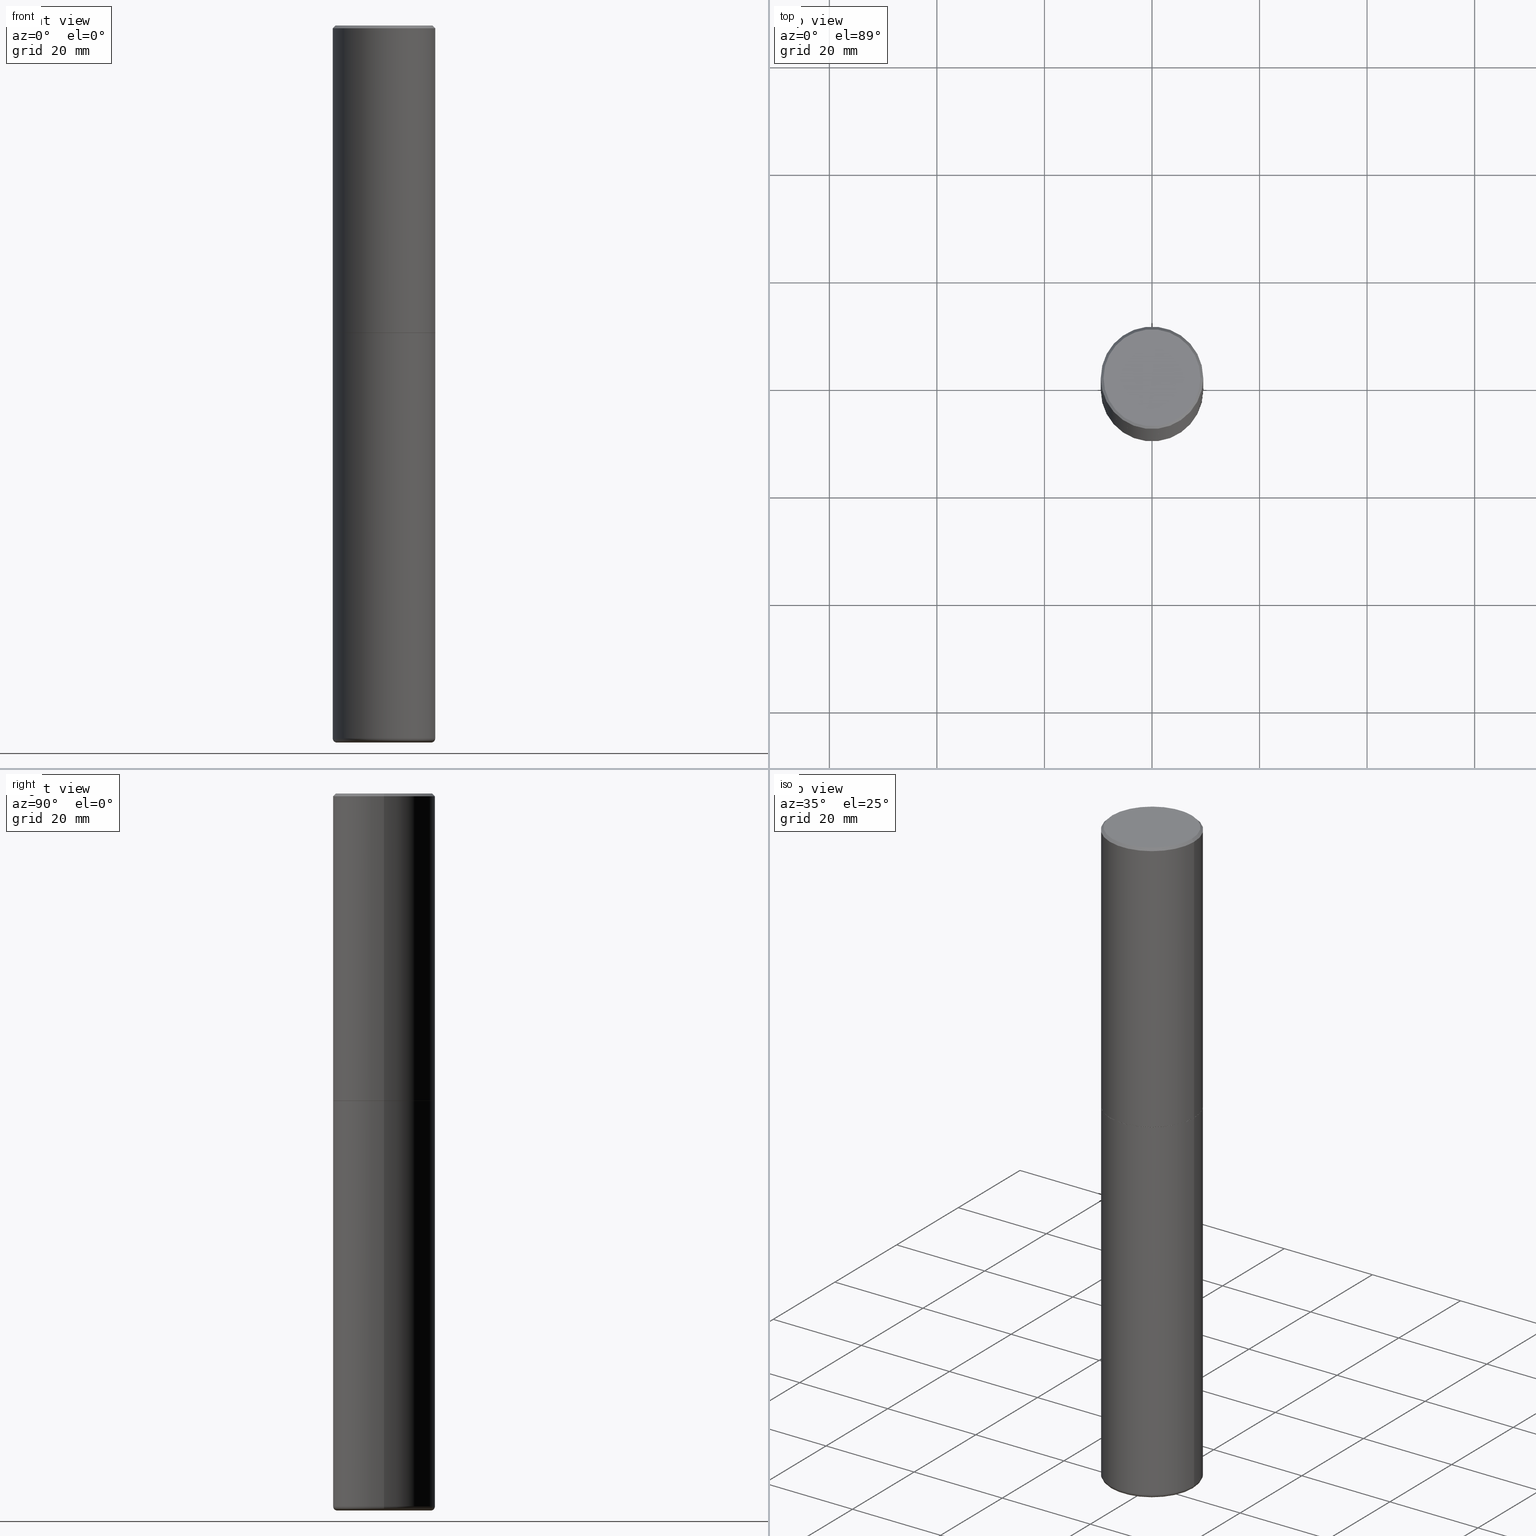
[diagram: canonical four-view strip — front | top / right | iso, engineering-drawing reading convention]
A machine part, canonical four-view strip (front | top / right | iso — engineering-drawing reading convention). The complete STEP part file that produces these views, byte-faithful:
ISO-10303-21;
HEADER;
FILE_DESCRIPTION (( 'STEP AP203' ),
    '1' );
FILE_NAME ('77448.STEP',
    '2024-05-02T19:42:38',
    ( '' ),
    ( '' ),
    'SwSTEP 2.0',
    'SolidWorks 2023',
    '' );
FILE_SCHEMA (( 'CONFIG_CONTROL_DESIGN' ));
ENDSEC;

DATA;
#1 = EDGE_LOOP ( 'NONE', ( #189, #202, #184, #107 ) ) ;
#2 = COORDINATED_UNIVERSAL_TIME_OFFSET ( 5, 0, .BEHIND. ) ;
#3 = TOROIDAL_SURFACE ( 'NONE', #246, 0.3450000000000000289, 0.03000000000000025910 ) ;
#4 = ORIENTED_EDGE ( 'NONE', *, *, #241, .F. ) ;
#5 = COORDINATED_UNIVERSAL_TIME_OFFSET ( 5, 0, .BEHIND. ) ;
#6 = CARTESIAN_POINT ( 'NONE',  ( 0.3750000000000001665, -2.618611004132351200E-15, 1.828566290923476763E-29 ) ) ;
#7 = EDGE_LOOP ( 'NONE', ( #255, #357, #27, #65 ) ) ;
#8 = MANIFOLD_SOLID_BREP ( 'Body-Move/Copy2[1]', #154 ) ;
#9 = CARTESIAN_POINT ( 'NONE',  ( 0.000000000000000000, 0.000000000000000000, 0.000000000000000000 ) ) ;
#10 = VECTOR ( 'NONE', #359, 39.37007874015748143 ) ;
#11 = LOCAL_TIME ( 15, 42, 38.00000000000000000, #352 ) ;
#12 = COORDINATED_UNIVERSAL_TIME_OFFSET ( 5, 0, .BEHIND. ) ;
#13 = CARTESIAN_POINT ( 'NONE',  ( 0.3750000000000000555, -2.642516375941188029E-15, -0.02000000000000008715 ) ) ;
#14 = CARTESIAN_POINT ( 'NONE',  ( 4.890937612370294178E-31, -6.982962677686321191E-17, -0.02000000000000008715 ) ) ;
#15 = FACE_OUTER_BOUND ( 'NONE', #131, .T. ) ;
#16 = AXIS2_PLACEMENT_3D ( 'NONE', #256, #310, #380 ) ;
#17 = LOCAL_TIME ( 15, 42, 38.00000000000000000, #5 ) ;
#18 = MANIFOLD_SOLID_BREP ( 'Body-Move/Copy2[2]', #101 ) ;
#19 = DIRECTION ( 'NONE',  ( -2.445468806185136597E-29, 3.491481338843145583E-15, 1.000000000000000000 ) ) ;
#20 = ADVANCED_FACE ( 'NONE', ( #355 ), #64, .T. ) ;
#21 = FACE_OUTER_BOUND ( 'NONE', #1, .T. ) ;
#22 = ADVANCED_FACE ( 'NONE', ( #164 ), #78, .T. ) ;
#23 = CIRCLE ( 'NONE', #160, 0.3739999999999999991 ) ;
#24 = FACE_OUTER_BOUND ( 'NONE', #353, .T. ) ;
#25 = DIRECTION ( 'NONE',  ( 1.000000000000000000, -6.982962677686265922E-15, 4.876176775795935793E-29 ) ) ;
#26 = EDGE_CURVE ( 'NONE', #292, #392, #406, .T. ) ;
#27 = ORIENTED_EDGE ( 'NONE', *, *, #26, .F. ) ;
#28 = PLANE ( 'NONE',  #179 ) ;
#29 = AXIS2_PLACEMENT_3D ( 'NONE', #79, #176, #243 ) ;
#30 = APPROVAL_DATE_TIME ( #163, #142 ) ;
#31 = ORIENTED_EDGE ( 'NONE', *, *, #272, .F. ) ;
#32 = EDGE_CURVE ( 'NONE', #98, #133, #391, .T. ) ;
#33 =( CONVERSION_BASED_UNIT ( 'INCH', #235 ) LENGTH_UNIT ( ) NAMED_UNIT ( #147 ) );
#34 = DIRECTION ( 'NONE',  ( -2.445468806185136597E-29, 3.491481338843145583E-15, 1.000000000000000000 ) ) ;
#35 = DATE_AND_TIME ( #138, #17 ) ;
#36 = DIRECTION ( 'NONE',  ( -2.445468806185136597E-29, 3.491481338843145583E-15, 1.000000000000000000 ) ) ;
#37 = CARTESIAN_POINT ( 'NONE',  ( 5.502304813916557343E-29, -7.855833012397078448E-15, -2.250000000000000000 ) ) ;
#38 = ORIENTED_EDGE ( 'NONE', *, *, #44, .F. ) ;
#39 = DIRECTION ( 'NONE',  ( 2.438088387897960049E-29, -3.491481338843145188E-15, -1.000000000000000000 ) ) ;
#40 = CALENDAR_DATE ( 2024, 2, 5 ) ;
#41 = PERSON ( 'UNSPECIFIED', 'UNSPECIFIED', 'UNSPECIFIED', ('UNSPECIFIED'), ('UNSPECIFIED'), ('UNSPECIFIED') ) ;
#42 = PLANE ( 'NONE',  #312 ) ;
#43 = VECTOR ( 'NONE', #146, 39.37007874015748854 ) ;
#44 = EDGE_CURVE ( 'NONE', #86, #320, #71, .T. ) ;
#45 = CALENDAR_DATE ( 2024, 2, 5 ) ;
#46 = PRODUCT_RELATED_PRODUCT_CATEGORY ( 'detail', '', ( #165 ) ) ;
#47 = LINE ( 'NONE', #302, #319 ) ;
#48 = DIRECTION ( 'NONE',  ( 1.000000000000000000, -6.982962677686268288E-15, 0.000000000000000000 ) ) ;
#49 = CARTESIAN_POINT ( 'NONE',  ( -0.3550000000000001488, 2.513866563967055858E-15, -1.622034746238331006E-16 ) ) ;
#50 = EDGE_CURVE ( 'NONE', #301, #327, #388, .T. ) ;
#51 = CARTESIAN_POINT ( 'NONE',  ( 4.890937612370294178E-31, -6.982962677686321191E-17, -0.02000000000000008715 ) ) ;
#52 = DESIGN_CONTEXT ( 'detailed design', #182, 'design' ) ;
#53 = CARTESIAN_POINT ( 'NONE',  ( 4.890937612370294178E-31, -6.982962677686321191E-17, -0.02000000000000008715 ) ) ;
#54 = DIRECTION ( 'NONE',  ( -2.445468806185136597E-29, 3.491481338843145583E-15, 1.000000000000000000 ) ) ;
#55 = ORIENTED_EDGE ( 'NONE', *, *, #418, .T. ) ;
#56 = AXIS2_PLACEMENT_3D ( 'NONE', #364, #407, #121 ) ;
#57 = EDGE_CURVE ( 'NONE', #86, #137, #23, .T. ) ;
#58 = CARTESIAN_POINT ( 'NONE',  ( 2.445042845561001673E-28, -1.701637067491864391E-15, -5.249999999999999112 ) ) ;
#59 = DIRECTION ( 'NONE',  ( 1.000000000000000000, -6.982962677686269077E-15, 4.883557194083113462E-29 ) ) ;
#60 = ORIENTED_EDGE ( 'NONE', *, *, #158, .T. ) ;
#61 = CC_DESIGN_DATE_AND_TIME_ASSIGNMENT ( #401, #365, ( #375 ) ) ;
#62 = CONICAL_SURFACE ( 'NONE', #341, 0.3750000000000000555, 0.7853981633974466137 ) ;
#63 = CARTESIAN_POINT ( 'NONE',  ( 0.3550000000000001488, -2.538996582575041837E-15, -1.622034746237980703E-16 ) ) ;
#64 = CYLINDRICAL_SURFACE ( 'NONE', #257, 0.3750000000000001665 ) ;
#65 = ORIENTED_EDGE ( 'NONE', *, *, #265, .F. ) ;
#66 = CARTESIAN_POINT ( 'NONE',  ( 5.499859345110371740E-29, -7.852341531058233864E-15, -2.249000000000000110 ) ) ;
#67 = ORIENTED_EDGE ( 'NONE', *, *, #404, .T. ) ;
#68 = VECTOR ( 'NONE', #330, 39.37007874015748143 ) ;
#69 = CALENDAR_DATE ( 2024, 2, 5 ) ;
#70 = LOCAL_TIME ( 15, 42, 38.00000000000000000, #12 ) ;
#71 = LINE ( 'NONE', #206, #68 ) ;
#72 = DIRECTION ( 'NONE',  ( -2.445468806185136597E-29, 3.491481338843145583E-15, 1.000000000000000000 ) ) ;
#73 = APPROVAL_DATE_TIME ( #398, #76 ) ;
#74 = CARTESIAN_POINT ( 'NONE',  ( -0.3750000000000000555, 2.664535259100376091E-15, -1.844600658845589598E-29 ) ) ;
#75 = EDGE_CURVE ( 'NONE', #137, #98, #47, .T. ) ;
#76 = APPROVAL ( #177, 'UNSPECIFIED' ) ;
#77 = FACE_OUTER_BOUND ( 'NONE', #139, .T. ) ;
#78 = CONICAL_SURFACE ( 'NONE', #210, 0.3739999999999999991, 0.7853981633975507526 ) ;
#79 = CARTESIAN_POINT ( 'NONE',  ( 5.502304813916557343E-29, -7.855833012397078448E-15, -2.250000000000000000 ) ) ;
#80 = CC_DESIGN_PERSON_AND_ORGANIZATION_ASSIGNMENT ( #132, #93, ( #100 ) ) ;
#81 = DIRECTION ( 'NONE',  ( -2.445468806185136597E-29, 3.491481338843145583E-15, 1.000000000000000000 ) ) ;
#82 = DIRECTION ( 'NONE',  ( -2.445468806185136597E-29, 3.491481338843145583E-15, 1.000000000000000000 ) ) ;
#83 = AXIS2_PLACEMENT_3D ( 'NONE', #148, #109, #366 ) ;
#84 = APPROVAL_PERSON_ORGANIZATION ( #259, #185, #321 ) ;
#85 = DIRECTION ( 'NONE',  ( -2.445468806185136597E-29, 3.491481338843145583E-15, 1.000000000000000000 ) ) ;
#86 = VERTEX_POINT ( 'NONE', #247 ) ;
#87 = CYLINDRICAL_SURFACE ( 'NONE', #354, 0.3750000000000000555 ) ;
#88 = EDGE_CURVE ( 'NONE', #392, #292, #267, .T. ) ;
#89 = CARTESIAN_POINT ( 'NONE',  ( 3.966635374473835042E-45, -5.663304047445699634E-31, -1.622034746238156224E-16 ) ) ;
#90 = ORIENTED_EDGE ( 'NONE', *, *, #26, .T. ) ;
#91 = CONICAL_SURFACE ( 'NONE', #381, 0.3750000000000000555, 0.7853981633974466137 ) ;
#92 = DIRECTION ( 'NONE',  ( -2.445468806185136597E-29, 3.491481338843145583E-15, 1.000000000000000000 ) ) ;
#93 = PERSON_AND_ORGANIZATION_ROLE ( 'design_supplier' ) ;
#94 = EDGE_CURVE ( 'NONE', #327, #392, #208, .T. ) ;
#95 = ORIENTED_EDGE ( 'NONE', *, *, #418, .F. ) ;
#96 = APPROVAL_STATUS ( 'not_yet_approved' ) ;
#97 = EDGE_CURVE ( 'NONE', #137, #86, #114, .T. ) ;
#98 = VERTEX_POINT ( 'NONE', #115 ) ;
#99 = AXIS2_PLACEMENT_3D ( 'NONE', #336, #275, #212 ) ;
#100 = PRODUCT_DEFINITION_FORMATION_WITH_SPECIFIED_SOURCE ( 'ANY', '', #165, .NOT_KNOWN. ) ;
#101 = CLOSED_SHELL ( 'NONE', ( #332, #105, #262, #326, #20, #22, #123, #167 ) ) ;
#102 = ORIENTED_EDGE ( 'NONE', *, *, #88, .T. ) ;
#103 = PERSON_AND_ORGANIZATION ( #41, #143 ) ;
#104 = VERTEX_POINT ( 'NONE', #113 ) ;
#105 = ADVANCED_FACE ( 'NONE', ( #77 ), #280, .T. ) ;
#106 = PERSON_AND_ORGANIZATION ( #41, #143 ) ;
#107 = ORIENTED_EDGE ( 'NONE', *, *, #88, .F. ) ;
#108 = AXIS2_PLACEMENT_3D ( 'NONE', #376, #155, #408 ) ;
#109 = DIRECTION ( 'NONE',  ( 7.105427357601001859E-15, 1.000000000000000000, -3.491481338843145583E-15 ) ) ;
#110 = AXIS2_PLACEMENT_3D ( 'NONE', #186, #315, #410 ) ;
#111 = CC_DESIGN_PERSON_AND_ORGANIZATION_ASSIGNMENT ( #323, #237, ( #371 ) ) ;
#112 = DIRECTION ( 'NONE',  ( 1.000000000000000000, -6.982962677686265922E-15, 4.876176775795935793E-29 ) ) ;
#113 = CARTESIAN_POINT ( 'NONE',  ( 0.3750000000000001110, -2.084414359289356356E-14, -5.219999999999997975 ) ) ;
#114 = CIRCLE ( 'NONE', #29, 0.3739999999999999991 ) ;
#115 = CARTESIAN_POINT ( 'NONE',  ( 0.3750000000000002776, -1.047095253519058704E-14, -2.249000000000000110 ) ) ;
#116 = FACE_OUTER_BOUND ( 'NONE', #273, .T. ) ;
#117 = DIRECTION ( 'NONE',  ( 2.438088387897960049E-29, -3.491481338843145188E-15, -1.000000000000000000 ) ) ;
#118 = CIRCLE ( 'NONE', #127, 0.3750000000000000555 ) ;
#119 = ORIENTED_EDGE ( 'NONE', *, *, #122, .F. ) ;
#120 = AXIS2_PLACEMENT_3D ( 'NONE', #89, #200, #233 ) ;
#121 = DIRECTION ( 'NONE',  ( 1.000000000000000000, -6.982962677686261977E-15, 0.000000000000000000 ) ) ;
#122 = EDGE_CURVE ( 'NONE', #327, #104, #118, .T. ) ;
#123 = ADVANCED_FACE ( 'NONE', ( #338 ), #211, .F. ) ;
#124 = CARTESIAN_POINT ( 'NONE',  ( -0.3750000000000000555, -1.037614754147877030E-14, -2.250000000000000000 ) ) ;
#125 = CARTESIAN_POINT ( 'NONE',  ( 0.000000000000000000, 0.000000000000000000, 0.000000000000000000 ) ) ;
#126 = VERTEX_POINT ( 'NONE', #49 ) ;
#127 = AXIS2_PLACEMENT_3D ( 'NONE', #396, #307, #244 ) ;
#128 = PERSON_AND_ORGANIZATION ( #41, #143 ) ;
#129 = ORIENTED_EDGE ( 'NONE', *, *, #205, .F. ) ;
#130 = PERSON_AND_ORGANIZATION_ROLE ( 'classification_officer' ) ;
#131 = EDGE_LOOP ( 'NONE', ( #316, #67 ) ) ;
#132 = PERSON_AND_ORGANIZATION ( #41, #143 ) ;
#133 = VERTEX_POINT ( 'NONE', #13 ) ;
#134 = CIRCLE ( 'NONE', #367, 0.3750000000000000555 ) ;
#135 = APPROVAL_PERSON_ORGANIZATION ( #106, #142, #358 ) ;
#136 = COORDINATED_UNIVERSAL_TIME_OFFSET ( 5, 0, .BEHIND. ) ;
#137 = VERTEX_POINT ( 'NONE', #402 ) ;
#138 = CALENDAR_DATE ( 2024, 2, 5 ) ;
#139 = EDGE_LOOP ( 'NONE', ( #411, #60, #129, #252 ) ) ;
#140 = DIRECTION ( 'NONE',  ( -2.445468806185136597E-29, 3.491481338843145583E-15, 1.000000000000000000 ) ) ;
#141 = CIRCLE ( 'NONE', #110, 0.3750000000000000555 ) ;
#142 = APPROVAL ( #390, 'UNSPECIFIED' ) ;
#143 = ORGANIZATION ( 'UNSPECIFIED', 'UNSPECIFIED', '' ) ;
#144 = DIRECTION ( 'NONE',  ( -2.445468806185136877E-29, 3.491481338843145188E-15, 1.000000000000000000 ) ) ;
#145 = DIRECTION ( 'NONE',  ( -2.445468806185136597E-29, 3.491481338843145583E-15, 1.000000000000000000 ) ) ;
#146 = DIRECTION ( 'NONE',  ( 0.7071067811865462405, -7.319954787623251312E-15, -0.7071067811865486830 ) ) ;
#147 = DIMENSIONAL_EXPONENTS ( 1.000000000000000000, 0.000000000000000000, 0.000000000000000000, 0.000000000000000000, 0.000000000000000000, 0.000000000000000000, 0.000000000000000000 ) ;
#148 = CARTESIAN_POINT ( 'NONE',  ( -0.3450000000000000289, -1.577416015038886967E-14, -5.219999999999997975 ) ) ;
#149 = CC_DESIGN_APPROVAL ( #76, ( #375 ) ) ;
#150 = CARTESIAN_POINT ( 'NONE',  ( 5.502304813916557343E-29, -7.855833012397078448E-15, -2.250000000000000000 ) ) ;
#151 = CARTESIAN_POINT ( 'NONE',  ( 0.000000000000000000, 0.000000000000000000, 0.000000000000000000 ) ) ;
#152 = CARTESIAN_POINT ( 'NONE',  ( -0.3750000000000001110, -1.556099732966083785E-14, -5.219999999999997975 ) ) ;
#153 = AXIS2_PLACEMENT_3D ( 'NONE', #209, #393, #112 ) ;
#154 = CLOSED_SHELL ( 'NONE', ( #281, #219, #363, #334, #293, #230 ) ) ;
#155 = DIRECTION ( 'NONE',  ( 2.438088387897960049E-29, -3.491481338843145188E-15, -1.000000000000000000 ) ) ;
#156 = ORIENTED_EDGE ( 'NONE', *, *, #207, .T. ) ;
#157 = DIRECTION ( 'NONE',  ( -2.445468806185136597E-29, 3.491481338843145583E-15, 1.000000000000000000 ) ) ;
#158 = EDGE_CURVE ( 'NONE', #320, #356, #333, .T. ) ;
#159 = EDGE_CURVE ( 'NONE', #239, #104, #197, .T. ) ;
#160 = AXIS2_PLACEMENT_3D ( 'NONE', #172, #309, #48 ) ;
#161 = PERSON_AND_ORGANIZATION ( #41, #143 ) ;
#162 = EDGE_LOOP ( 'NONE', ( #271, #156, #284, #260 ) ) ;
#163 = DATE_AND_TIME ( #69, #174 ) ;
#164 = FACE_OUTER_BOUND ( 'NONE', #314, .T. ) ;
#165 = PRODUCT ( '77448', '77448', '', ( #385 ) ) ;
#166 = APPROVAL_DATE_TIME ( #195, #185 ) ;
#167 = ADVANCED_FACE ( 'NONE', ( #15 ), #42, .F. ) ;
#168 = ORIENTED_EDGE ( 'NONE', *, *, #57, .F. ) ;
#169 = ORIENTED_EDGE ( 'NONE', *, *, #216, .T. ) ;
#170 = DIRECTION ( 'NONE',  ( 1.000000000000000000, -6.982962677686266711E-15, 4.876176775795935793E-29 ) ) ;
#171 = EDGE_CURVE ( 'NONE', #98, #320, #348, .T. ) ;
#172 = CARTESIAN_POINT ( 'NONE',  ( 5.502304813916557343E-29, -7.855833012397078448E-15, -2.250000000000000000 ) ) ;
#173 = TOROIDAL_SURFACE ( 'NONE', #303, 0.3450000000000000289, 0.03000000000000025910 ) ;
#174 = LOCAL_TIME ( 15, 42, 38.00000000000000000, #2 ) ;
#175 = CARTESIAN_POINT ( 'NONE',  ( -0.3750000000000001665, 2.664535259100376880E-15, -1.844600658845590439E-29 ) ) ;
#176 = DIRECTION ( 'NONE',  ( -2.445468806185136597E-29, 3.491481338843145583E-15, 1.000000000000000000 ) ) ;
#177 = APPROVAL_STATUS ( 'not_yet_approved' ) ;
#178 = DIRECTION ( 'NONE',  ( 1.000000000000000000, -6.982962677686266711E-15, 4.876176775795935793E-29 ) ) ;
#179 = AXIS2_PLACEMENT_3D ( 'NONE', #58, #117, #349 ) ;
#180 = FACE_OUTER_BOUND ( 'NONE', #266, .T. ) ;
#181 = LOCAL_TIME ( 15, 42, 38.00000000000000000, #136 ) ;
#182 = APPLICATION_CONTEXT ( 'configuration controlled 3d designs of mechanical parts and assemblies' ) ;
#183 = FACE_OUTER_BOUND ( 'NONE', #224, .T. ) ;
#184 = ORIENTED_EDGE ( 'NONE', *, *, #265, .T. ) ;
#185 = APPROVAL ( #96, 'UNSPECIFIED' ) ;
#186 = CARTESIAN_POINT ( 'NONE',  ( 1.276534716828640801E-28, -1.822553258876121354E-14, -5.219999999999997975 ) ) ;
#187 = FACE_OUTER_BOUND ( 'NONE', #196, .T. ) ;
#188 = AXIS2_PLACEMENT_3D ( 'NONE', #150, #72, #337 ) ;
#189 = ORIENTED_EDGE ( 'NONE', *, *, #94, .F. ) ;
#190 = CC_DESIGN_SECURITY_CLASSIFICATION ( #375, ( #100 ) ) ;
#191 = CARTESIAN_POINT ( 'NONE',  ( 3.966635374473835042E-45, -5.663304047445699634E-31, -1.622034746238156224E-16 ) ) ;
#192 = ORIENTED_EDGE ( 'NONE', *, *, #159, .T. ) ;
#193 = CARTESIAN_POINT ( 'NONE',  ( 0.3450000000000000289, -2.073939915272827019E-14, -5.249999999999999112 ) ) ;
#194 = ORIENTED_EDGE ( 'NONE', *, *, #304, .T. ) ;
#195 = DATE_AND_TIME ( #290, #11 ) ;
#196 = EDGE_LOOP ( 'NONE', ( #231, #4, #263, #194 ) ) ;
#197 = CIRCLE ( 'NONE', #99, 0.03000000000000022787 ) ;
#198 = DIRECTION ( 'NONE',  ( 1.000000000000000000, -6.982962677686267499E-15, 0.000000000000000000 ) ) ;
#199 = ORIENTED_EDGE ( 'NONE', *, *, #50, .F. ) ;
#200 = DIRECTION ( 'NONE',  ( -2.445468806185136597E-29, 3.491481338843145583E-15, 1.000000000000000000 ) ) ;
#201 = ORIENTED_EDGE ( 'NONE', *, *, #171, .F. ) ;
#202 = ORIENTED_EDGE ( 'NONE', *, *, #122, .T. ) ;
#203 = CONICAL_SURFACE ( 'NONE', #16, 0.3739999999999999991, 0.7853981633975507526 ) ;
#204 = CIRCLE ( 'NONE', #361, 0.3750000000000002776 ) ;
#205 = EDGE_CURVE ( 'NONE', #133, #356, #134, .T. ) ;
#206 = CARTESIAN_POINT ( 'NONE',  ( -0.3739999999999999991, -5.198403180654302971E-15, -2.250000000000000000 ) ) ;
#207 = EDGE_CURVE ( 'NONE', #409, #133, #397, .T. ) ;
#208 = LINE ( 'NONE', #74, #360 ) ;
#209 = CARTESIAN_POINT ( 'NONE',  ( 5.502304813916557343E-29, -7.855833012397078448E-15, -2.250000000000000000 ) ) ;
#210 = AXIS2_PLACEMENT_3D ( 'NONE', #37, #140, #296 ) ;
#211 = PLANE ( 'NONE',  #153 ) ;
#212 = DIRECTION ( 'NONE',  ( 1.000000000000000000, -6.982962677686215435E-15, 0.000000000000000000 ) ) ;
#213 = CARTESIAN_POINT ( 'NONE',  ( 2.478951750578625787E-15, 0.3550000000000001488, -1.320577612601225142E-15 ) ) ;
#214 = CIRCLE ( 'NONE', #298, 0.3550000000000001488 ) ;
#215 = DIRECTION ( 'NONE',  ( 1.000000000000000000, -6.982962677686265922E-15, 0.000000000000000000 ) ) ;
#216 = EDGE_CURVE ( 'NONE', #301, #239, #328, .T. ) ;
#217 = DIRECTION ( 'NONE',  ( 1.000000000000000000, -6.982962677686266711E-15, 4.878367520217860717E-29 ) ) ;
#218 = ADVANCED_BREP_SHAPE_REPRESENTATION ( '77448', ( #8, #18, #368 ), #382 ) ;
#219 = ADVANCED_FACE ( 'NONE', ( #180 ), #3, .T. ) ;
#220 = ORIENTED_EDGE ( 'NONE', *, *, #97, .T. ) ;
#221 = FACE_OUTER_BOUND ( 'NONE', #162, .T. ) ;
#222 = CARTESIAN_POINT ( 'NONE',  ( 0.3750000000000000555, -2.618611004132350016E-15, 1.828566290923476203E-29 ) ) ;
#223 = AXIS2_PLACEMENT_3D ( 'NONE', #317, #82, #215 ) ;
#224 = EDGE_LOOP ( 'NONE', ( #220, #389, #201, #350 ) ) ;
#225 = EDGE_CURVE ( 'NONE', #239, #301, #250, .T. ) ;
#226 = DIRECTION ( 'NONE',  ( -1.000000000000000000, 6.982962677686265922E-15, 0.000000000000000000 ) ) ;
#227 = APPLICATION_PROTOCOL_DEFINITION ( 'international standard', 'config_control_design', 1994, #384 ) ;
#228 = ORIENTED_EDGE ( 'NONE', *, *, #225, .F. ) ;
#229 = CARTESIAN_POINT ( 'NONE',  ( 0.000000000000000000, 0.000000000000000000, 0.000000000000000000 ) ) ;
#230 = ADVANCED_FACE ( 'NONE', ( #116 ), #28, .T. ) ;
#231 = ORIENTED_EDGE ( 'NONE', *, *, #207, .F. ) ;
#232 = CC_DESIGN_PERSON_AND_ORGANIZATION_ASSIGNMENT ( #161, #414, ( #100 ) ) ;
#233 = DIRECTION ( 'NONE',  ( 1.000000000000000000, -6.982962677686266711E-15, 4.878367520217860717E-29 ) ) ;
#234 = ORIENTED_EDGE ( 'NONE', *, *, #159, .F. ) ;
#235 = LENGTH_MEASURE_WITH_UNIT ( LENGTH_MEASURE( 0.02539999999999999897 ), #387 );
#236 = EDGE_LOOP ( 'NONE', ( #288, #168 ) ) ;
#237 = PERSON_AND_ORGANIZATION_ROLE ( 'creator' ) ;
#238 = CC_DESIGN_PERSON_AND_ORGANIZATION_ASSIGNMENT ( #103, #130, ( #375 ) ) ;
#239 = VERTEX_POINT ( 'NONE', #193 ) ;
#240 = AXIS2_PLACEMENT_3D ( 'NONE', #151, #379, #254 ) ;
#241 = EDGE_CURVE ( 'NONE', #126, #409, #214, .T. ) ;
#242 = SHAPE_DEFINITION_REPRESENTATION ( #335, #218 ) ;
#243 = DIRECTION ( 'NONE',  ( 1.000000000000000000, -6.982962677686268288E-15, 0.000000000000000000 ) ) ;
#244 = DIRECTION ( 'NONE',  ( 1.000000000000000000, -6.982962677686261189E-15, 0.000000000000000000 ) ) ;
#245 = DIRECTION ( 'NONE',  ( -2.445468806185136877E-29, 3.491481338843145188E-15, 1.000000000000000000 ) ) ;
#246 = AXIS2_PLACEMENT_3D ( 'NONE', #399, #92, #59 ) ;
#247 = CARTESIAN_POINT ( 'NONE',  ( -0.3739999999999999991, -5.193104726306079780E-15, -2.250000000000000000 ) ) ;
#248 = CARTESIAN_POINT ( 'NONE',  ( 5.499859345110371740E-29, -7.852341531058233864E-15, -2.249000000000000110 ) ) ;
#249 = FACE_OUTER_BOUND ( 'NONE', #415, .T. ) ;
#250 = CIRCLE ( 'NONE', #56, 0.3450000000000000289 ) ;
#251 = DIRECTION ( 'NONE',  ( -0.7071067811865462405, 2.468850131082243650E-15, -0.7071067811865486830 ) ) ;
#252 = ORIENTED_EDGE ( 'NONE', *, *, #32, .F. ) ;
#253 = FACE_OUTER_BOUND ( 'NONE', #7, .T. ) ;
#254 = DIRECTION ( 'NONE',  ( 1.000000000000000000, -6.982962677686265922E-15, 4.876176775795935793E-29 ) ) ;
#255 = ORIENTED_EDGE ( 'NONE', *, *, #272, .T. ) ;
#256 = CARTESIAN_POINT ( 'NONE',  ( 5.502304813916557343E-29, -7.855833012397078448E-15, -2.250000000000000000 ) ) ;
#257 = AXIS2_PLACEMENT_3D ( 'NONE', #322, #34, #170 ) ;
#258 = ORIENTED_EDGE ( 'NONE', *, *, #158, .F. ) ;
#259 = PERSON_AND_ORGANIZATION ( #41, #143 ) ;
#260 = ORIENTED_EDGE ( 'NONE', *, *, #345, .F. ) ;
#261 = DIRECTION ( 'NONE',  ( 0.000000000000000000, 0.000000000000000000, 1.000000000000000000 ) ) ;
#262 = ADVANCED_FACE ( 'NONE', ( #221 ), #62, .T. ) ;
#263 = ORIENTED_EDGE ( 'NONE', *, *, #345, .T. ) ;
#264 = DIRECTION ( 'NONE',  ( -2.445468806185136597E-29, 3.491481338843145583E-15, 1.000000000000000000 ) ) ;
#265 = EDGE_CURVE ( 'NONE', #104, #292, #311, .T. ) ;
#266 = EDGE_LOOP ( 'NONE', ( #377, #347, #31, #234 ) ) ;
#267 = CIRCLE ( 'NONE', #188, 0.3750000000000000555 ) ;
#268 =( NAMED_UNIT ( * ) SI_UNIT ( $, .STERADIAN. ) SOLID_ANGLE_UNIT ( ) );
#269 = ORIENTED_EDGE ( 'NONE', *, *, #304, .F. ) ;
#270 = DIRECTION ( 'NONE',  ( 1.000000000000000000, 0.000000000000000000, 0.000000000000000000 ) ) ;
#271 = ORIENTED_EDGE ( 'NONE', *, *, #404, .F. ) ;
#272 = EDGE_CURVE ( 'NONE', #104, #327, #141, .T. ) ;
#273 = EDGE_LOOP ( 'NONE', ( #228, #299 ) ) ;
#274 = AXIS2_PLACEMENT_3D ( 'NONE', #248, #306, #362 ) ;
#275 = DIRECTION ( 'NONE',  ( -6.982962677686266711E-15, -1.000000000000000000, 3.491481338843145583E-15 ) ) ;
#276 = DIRECTION ( 'NONE',  ( 1.000000000000000000, -6.982962677686265922E-15, 0.000000000000000000 ) ) ;
#277 = CC_DESIGN_PERSON_AND_ORGANIZATION_ASSIGNMENT ( #128, #318, ( #165 ) ) ;
#278 = CARTESIAN_POINT ( 'NONE',  ( 1.283871123247196489E-28, -1.833027702892651007E-14, -5.249999999999999112 ) ) ;
#279 = CC_DESIGN_APPROVAL ( #185, ( #371 ) ) ;
#280 = CYLINDRICAL_SURFACE ( 'NONE', #394, 0.3750000000000001665 ) ;
#281 = ADVANCED_FACE ( 'NONE', ( #253 ), #87, .T. ) ;
#282 = DIRECTION ( 'NONE',  ( 2.445468806185136597E-29, -3.491481338843145583E-15, -1.000000000000000000 ) ) ;
#283 = LINE ( 'NONE', #405, #412 ) ;
#284 = ORIENTED_EDGE ( 'NONE', *, *, #205, .T. ) ;
#285 = AXIS2_PLACEMENT_3D ( 'NONE', #278, #81, #331 ) ;
#286 = CYLINDRICAL_SURFACE ( 'NONE', #240, 0.3750000000000000555 ) ;
#287 = DIRECTION ( 'NONE',  ( 2.445468806185136597E-29, -3.491481338843145583E-15, -1.000000000000000000 ) ) ;
#288 = ORIENTED_EDGE ( 'NONE', *, *, #97, .F. ) ;
#289 = CARTESIAN_POINT ( 'NONE',  ( -0.3750000000000002776, -1.296550319817168545E-15, -2.249000000000000110 ) ) ;
#290 = CALENDAR_DATE ( 2024, 2, 5 ) ;
#291 = VECTOR ( 'NONE', #403, 39.37007874015748143 ) ;
#292 = VERTEX_POINT ( 'NONE', #346 ) ;
#293 = ADVANCED_FACE ( 'NONE', ( #249 ), #173, .T. ) ;
#294 = SECURITY_CLASSIFICATION_LEVEL ( 'unclassified' ) ;
#295 = EDGE_LOOP ( 'NONE', ( #258, #55, #386, #269 ) ) ;
#296 = DIRECTION ( 'NONE',  ( 1.000000000000000000, -6.982962677686268288E-15, 0.000000000000000000 ) ) ;
#297 = DIRECTION ( 'NONE',  ( 1.000000000000000000, -6.982962677686264344E-15, 0.000000000000000000 ) ) ;
#298 = AXIS2_PLACEMENT_3D ( 'NONE', #191, #54, #217 ) ;
#299 = ORIENTED_EDGE ( 'NONE', *, *, #216, .F. ) ;
#300 = APPROVAL_ROLE ( '' ) ;
#301 = VERTEX_POINT ( 'NONE', #343 ) ;
#302 = CARTESIAN_POINT ( 'NONE',  ( 0.3739999999999999991, -1.046746105385174245E-14, -2.250000000000000000 ) ) ;
#303 = AXIS2_PLACEMENT_3D ( 'NONE', #373, #157, #342 ) ;
#304 = EDGE_CURVE ( 'NONE', #356, #133, #400, .T. ) ;
#305 = DIRECTION ( 'NONE',  ( -1.000000000000000000, 6.982962677686265922E-15, -4.876176775795935793E-29 ) ) ;
#306 = DIRECTION ( 'NONE',  ( -2.445468806185136597E-29, 3.491481338843145583E-15, 1.000000000000000000 ) ) ;
#307 = DIRECTION ( 'NONE',  ( -2.445468806185136597E-29, 3.491481338843145583E-15, 1.000000000000000000 ) ) ;
#308 = AXIS2_PLACEMENT_3D ( 'NONE', #324, #36, #297 ) ;
#309 = DIRECTION ( 'NONE',  ( -2.445468806185136597E-29, 3.491481338843145583E-15, 1.000000000000000000 ) ) ;
#310 = DIRECTION ( 'NONE',  ( -2.445468806185136597E-29, 3.491481338843145583E-15, 1.000000000000000000 ) ) ;
#311 = LINE ( 'NONE', #222, #291 ) ;
#312 = AXIS2_PLACEMENT_3D ( 'NONE', #213, #39, #305 ) ;
#313 = CARTESIAN_POINT ( 'NONE',  ( -0.3750000000000000555, 2.548781377355486718E-15, -0.02000000000000008715 ) ) ;
#314 = EDGE_LOOP ( 'NONE', ( #38, #344, #416, #95 ) ) ;
#315 = DIRECTION ( 'NONE',  ( -2.445468806185136597E-29, 3.491481338843145583E-15, 1.000000000000000000 ) ) ;
#316 = ORIENTED_EDGE ( 'NONE', *, *, #241, .T. ) ;
#317 = CARTESIAN_POINT ( 'NONE',  ( 4.890937612370294178E-31, -6.982962677686321191E-17, -0.02000000000000008715 ) ) ;
#318 = PERSON_AND_ORGANIZATION_ROLE ( 'design_owner' ) ;
#319 = VECTOR ( 'NONE', #369, 39.37007874015748143 ) ;
#320 = VERTEX_POINT ( 'NONE', #289 ) ;
#321 = APPROVAL_ROLE ( '' ) ;
#322 = CARTESIAN_POINT ( 'NONE',  ( 0.000000000000000000, 0.000000000000000000, 0.000000000000000000 ) ) ;
#323 = PERSON_AND_ORGANIZATION ( #41, #143 ) ;
#324 = CARTESIAN_POINT ( 'NONE',  ( 5.502304813916557343E-29, -7.855833012397078448E-15, -2.250000000000000000 ) ) ;
#325 =( NAMED_UNIT ( * ) PLANE_ANGLE_UNIT ( ) SI_UNIT ( $, .RADIAN. ) );
#326 = ADVANCED_FACE ( 'NONE', ( #187 ), #91, .T. ) ;
#327 = VERTEX_POINT ( 'NONE', #152 ) ;
#328 = CIRCLE ( 'NONE', #285, 0.3450000000000000289 ) ;
#329 = DATE_TIME_ROLE ( 'creation_date' ) ;
#330 = DIRECTION ( 'NONE',  ( -0.7071067811866199593, 7.493145998870616062E-15, 0.7071067811864750752 ) ) ;
#331 = DIRECTION ( 'NONE',  ( 1.000000000000000000, -6.982962677686261977E-15, 0.000000000000000000 ) ) ;
#332 = ADVANCED_FACE ( 'NONE', ( #183 ), #203, .T. ) ;
#333 = LINE ( 'NONE', #175, #374 ) ;
#334 = ADVANCED_FACE ( 'NONE', ( #21 ), #286, .T. ) ;
#335 = PRODUCT_DEFINITION_SHAPE ( 'NONE', 'NONE',  #371 ) ;
#336 = CARTESIAN_POINT ( 'NONE',  ( 0.3450000000000000289, -2.063465471256297367E-14, -5.219999999999997975 ) ) ;
#337 = DIRECTION ( 'NONE',  ( 1.000000000000000000, -6.982962677686264344E-15, 0.000000000000000000 ) ) ;
#338 = FACE_OUTER_BOUND ( 'NONE', #236, .T. ) ;
#339 = UNCERTAINTY_MEASURE_WITH_UNIT (LENGTH_MEASURE( 1.000000000000000082E-05 ), #33, 'distance_accuracy_value', 'NONE');
#340 = CIRCLE ( 'NONE', #120, 0.3550000000000001488 ) ;
#341 = AXIS2_PLACEMENT_3D ( 'NONE', #53, #282, #351 ) ;
#342 = DIRECTION ( 'NONE',  ( 1.000000000000000000, -6.982962677686269077E-15, 4.883557194083113462E-29 ) ) ;
#343 = CARTESIAN_POINT ( 'NONE',  ( -0.3450000000000000289, -1.571995096010750044E-14, -5.249999999999999112 ) ) ;
#344 = ORIENTED_EDGE ( 'NONE', *, *, #57, .T. ) ;
#345 = EDGE_CURVE ( 'NONE', #126, #356, #283, .T. ) ;
#346 = CARTESIAN_POINT ( 'NONE',  ( 0.3750000000000000555, -1.047444401652942689E-14, -2.250000000000000000 ) ) ;
#347 = ORIENTED_EDGE ( 'NONE', *, *, #50, .T. ) ;
#348 = CIRCLE ( 'NONE', #274, 0.3750000000000002776 ) ;
#349 = DIRECTION ( 'NONE',  ( -1.000000000000000000, 6.982962677686265922E-15, -4.876176775795935793E-29 ) ) ;
#350 = ORIENTED_EDGE ( 'NONE', *, *, #75, .F. ) ;
#351 = DIRECTION ( 'NONE',  ( -1.000000000000000000, 6.982962677686265922E-15, 0.000000000000000000 ) ) ;
#352 = COORDINATED_UNIVERSAL_TIME_OFFSET ( 5, 0, .BEHIND. ) ;
#353 = EDGE_LOOP ( 'NONE', ( #90, #102 ) ) ;
#354 = AXIS2_PLACEMENT_3D ( 'NONE', #125, #85, #25 ) ;
#355 = FACE_OUTER_BOUND ( 'NONE', #295, .T. ) ;
#356 = VERTEX_POINT ( 'NONE', #313 ) ;
#357 = ORIENTED_EDGE ( 'NONE', *, *, #94, .T. ) ;
#358 = APPROVAL_ROLE ( '' ) ;
#359 = DIRECTION ( 'NONE',  ( -2.445468806185136877E-29, 3.491481338843145188E-15, 1.000000000000000000 ) ) ;
#360 = VECTOR ( 'NONE', #245, 39.37007874015748143 ) ;
#361 = AXIS2_PLACEMENT_3D ( 'NONE', #66, #264, #198 ) ;
#362 = DIRECTION ( 'NONE',  ( 1.000000000000000000, -6.982962677686267499E-15, 0.000000000000000000 ) ) ;
#363 = ADVANCED_FACE ( 'NONE', ( #24 ), #383, .F. ) ;
#364 = CARTESIAN_POINT ( 'NONE',  ( 1.283871123247196489E-28, -1.833027702892651007E-14, -5.249999999999999112 ) ) ;
#365 = DATE_TIME_ROLE ( 'classification_date' ) ;
#366 = DIRECTION ( 'NONE',  ( -1.000000000000000000, 7.105427357601001859E-15, 0.000000000000000000 ) ) ;
#367 = AXIS2_PLACEMENT_3D ( 'NONE', #14, #145, #276 ) ;
#368 = AXIS2_PLACEMENT_3D ( 'NONE', #229, #261, #270 ) ;
#369 = DIRECTION ( 'NONE',  ( 0.7071067811866199593, -2.468850131083015945E-15, 0.7071067811864750752 ) ) ;
#370 = PERSON_AND_ORGANIZATION ( #41, #143 ) ;
#371 = PRODUCT_DEFINITION ( 'UNKNOWN', '', #100, #52 ) ;
#372 = CARTESIAN_POINT ( 'NONE',  ( 0.3750000000000000555, -2.642516375941188029E-15, -0.02000000000000008715 ) ) ;
#373 = CARTESIAN_POINT ( 'NONE',  ( 1.276534716828640801E-28, -1.822553258876121354E-14, -5.219999999999997975 ) ) ;
#374 = VECTOR ( 'NONE', #144, 39.37007874015748143 ) ;
#375 = SECURITY_CLASSIFICATION ( '', '', #294 ) ;
#376 = CARTESIAN_POINT ( 'NONE',  ( 5.502304813916557343E-29, -7.855833012397078448E-15, -2.250000000000000000 ) ) ;
#377 = ORIENTED_EDGE ( 'NONE', *, *, #225, .T. ) ;
#378 = CC_DESIGN_DATE_AND_TIME_ASSIGNMENT ( #35, #329, ( #371 ) ) ;
#379 = DIRECTION ( 'NONE',  ( -2.445468806185136597E-29, 3.491481338843145583E-15, 1.000000000000000000 ) ) ;
#380 = DIRECTION ( 'NONE',  ( 1.000000000000000000, -6.982962677686268288E-15, 0.000000000000000000 ) ) ;
#381 = AXIS2_PLACEMENT_3D ( 'NONE', #51, #287, #226 ) ;
#382 =( GEOMETRIC_REPRESENTATION_CONTEXT ( 3 ) GLOBAL_UNCERTAINTY_ASSIGNED_CONTEXT ( ( #339 ) ) GLOBAL_UNIT_ASSIGNED_CONTEXT ( ( #33, #325, #268 ) ) REPRESENTATION_CONTEXT ( 'NONE', 'WORKASPACE' ) );
#383 = PLANE ( 'NONE',  #108 ) ;
#384 = APPLICATION_CONTEXT ( 'configuration controlled 3d designs of mechanical parts and assemblies' ) ;
#385 = MECHANICAL_CONTEXT ( 'NONE', #384, 'mechanical' ) ;
#386 = ORIENTED_EDGE ( 'NONE', *, *, #32, .T. ) ;
#387 =( LENGTH_UNIT ( ) NAMED_UNIT ( * ) SI_UNIT ( $, .METRE. ) );
#388 = CIRCLE ( 'NONE', #83, 0.03000000000000022787 ) ;
#389 = ORIENTED_EDGE ( 'NONE', *, *, #44, .T. ) ;
#390 = APPROVAL_STATUS ( 'not_yet_approved' ) ;
#391 = LINE ( 'NONE', #6, #10 ) ;
#392 = VERTEX_POINT ( 'NONE', #124 ) ;
#393 = DIRECTION ( 'NONE',  ( -2.438088387897960049E-29, 3.491481338843145188E-15, 1.000000000000000000 ) ) ;
#394 = AXIS2_PLACEMENT_3D ( 'NONE', #9, #19, #178 ) ;
#395 = APPROVAL_PERSON_ORGANIZATION ( #370, #76, #300 ) ;
#396 = CARTESIAN_POINT ( 'NONE',  ( 1.276534716828640801E-28, -1.822553258876121354E-14, -5.219999999999997975 ) ) ;
#397 = LINE ( 'NONE', #372, #43 ) ;
#398 = DATE_AND_TIME ( #40, #70 ) ;
#399 = CARTESIAN_POINT ( 'NONE',  ( 1.276534716828640801E-28, -1.822553258876121354E-14, -5.219999999999997975 ) ) ;
#400 = CIRCLE ( 'NONE', #223, 0.3750000000000000555 ) ;
#401 = DATE_AND_TIME ( #45, #181 ) ;
#402 = CARTESIAN_POINT ( 'NONE',  ( 0.3739999999999999991, -1.046746105385174245E-14, -2.250000000000000000 ) ) ;
#403 = DIRECTION ( 'NONE',  ( -2.445468806185136877E-29, 3.491481338843145188E-15, 1.000000000000000000 ) ) ;
#404 = EDGE_CURVE ( 'NONE', #409, #126, #340, .T. ) ;
#405 = CARTESIAN_POINT ( 'NONE',  ( -0.3750000000000000555, 2.548781377355486718E-15, -0.02000000000000008715 ) ) ;
#406 = CIRCLE ( 'NONE', #308, 0.3750000000000000555 ) ;
#407 = DIRECTION ( 'NONE',  ( -2.445468806185136597E-29, 3.491481338843145583E-15, 1.000000000000000000 ) ) ;
#408 = DIRECTION ( 'NONE',  ( -1.000000000000000000, 6.982962677686265922E-15, -4.876176775795935793E-29 ) ) ;
#409 = VERTEX_POINT ( 'NONE', #63 ) ;
#410 = DIRECTION ( 'NONE',  ( 1.000000000000000000, -6.982962677686261189E-15, 0.000000000000000000 ) ) ;
#411 = ORIENTED_EDGE ( 'NONE', *, *, #171, .T. ) ;
#412 = VECTOR ( 'NONE', #251, 39.37007874015748854 ) ;
#413 = CC_DESIGN_APPROVAL ( #142, ( #100 ) ) ;
#414 = PERSON_AND_ORGANIZATION_ROLE ( 'creator' ) ;
#415 = EDGE_LOOP ( 'NONE', ( #199, #169, #192, #119 ) ) ;
#416 = ORIENTED_EDGE ( 'NONE', *, *, #75, .T. ) ;
#417 = APPLICATION_PROTOCOL_DEFINITION ( 'international standard', 'config_control_design', 1994, #182 ) ;
#418 = EDGE_CURVE ( 'NONE', #320, #98, #204, .T. ) ;
ENDSEC;
END-ISO-10303-21;
